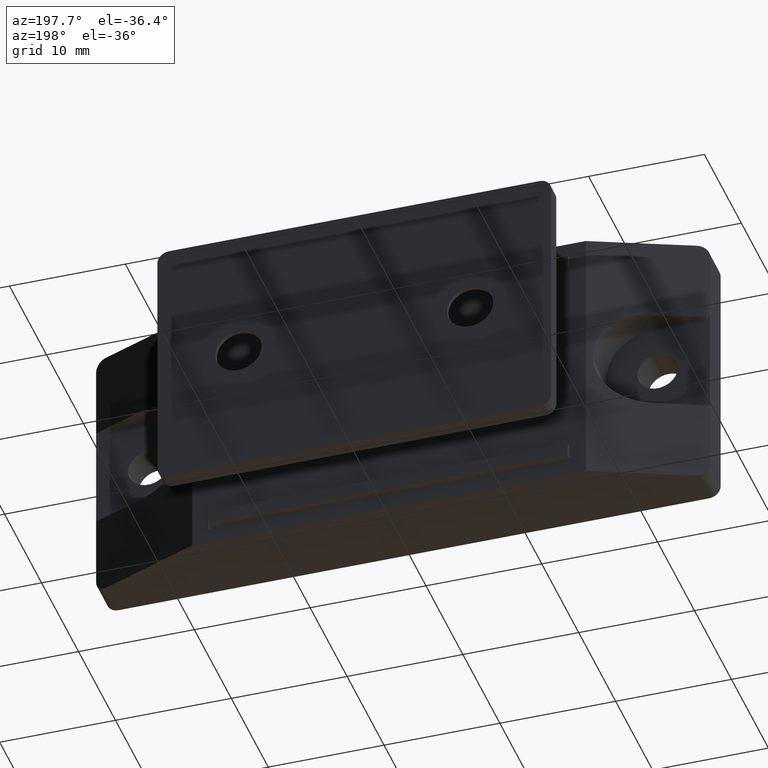
[diagram: clean part render]
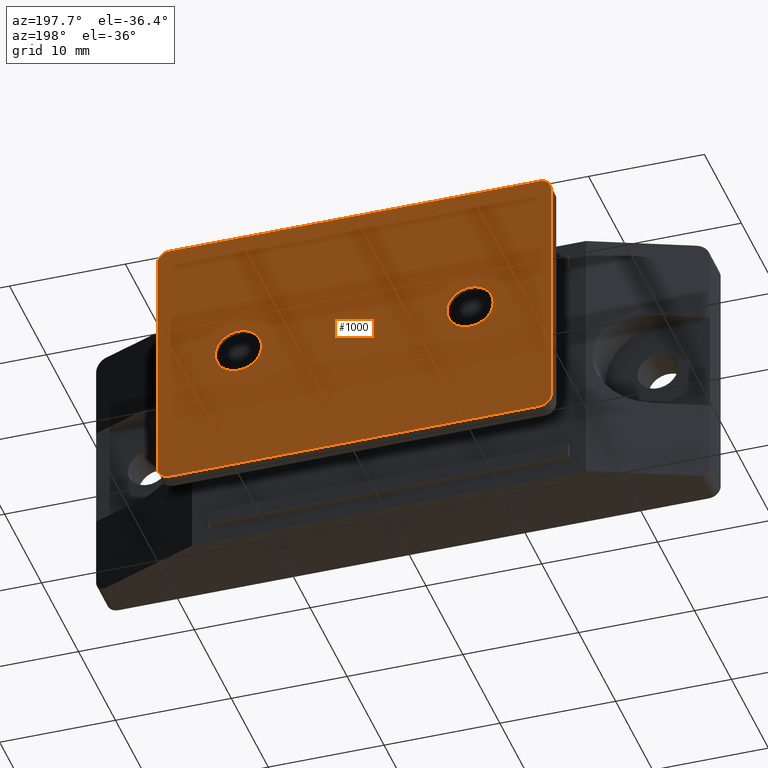
[diagram: same view with one face highlighted and labeled with its STEP entity id]
A machine part, auxiliary view. The second image highlights one B-rep face of the part: STEP entity #1000.
In plain terms, the highlighted planar face has unit normal (-0, -1, 0).
Its self-contained STEP definition (entity closure, byte-faithful):
#50=FACE_BOUND('',#201,.T.);
#51=FACE_BOUND('',#202,.T.);
#83=PLANE('',#1082);
#134=FACE_OUTER_BOUND('',#200,.T.);
#200=EDGE_LOOP('',(#852,#853,#854,#855,#856,#857,#858,#859));
#201=EDGE_LOOP('',(#860));
#202=EDGE_LOOP('',(#861));
#302=LINE('',#1590,#404);
#305=LINE('',#1596,#407);
#306=LINE('',#1600,#408);
#307=LINE('',#1604,#409);
#404=VECTOR('',#1295,32.);
#407=VECTOR('',#1300,21.);
#408=VECTOR('',#1303,32.);
#409=VECTOR('',#1306,21.);
#453=CIRCLE('',#1080,1.);
#454=CIRCLE('',#1083,1.);
#455=CIRCLE('',#1084,1.);
#456=CIRCLE('',#1085,1.);
#457=CIRCLE('',#1086,2.);
#458=CIRCLE('',#1087,2.);
#520=VERTEX_POINT('',#1583);
#521=VERTEX_POINT('',#1585);
#522=VERTEX_POINT('',#1589);
#524=VERTEX_POINT('',#1595);
#525=VERTEX_POINT('',#1597);
#526=VERTEX_POINT('',#1599);
#527=VERTEX_POINT('',#1601);
#528=VERTEX_POINT('',#1603);
#529=VERTEX_POINT('',#1606);
#530=VERTEX_POINT('',#1608);
#636=EDGE_CURVE('',#520,#521,#453,.T.);
#638=EDGE_CURVE('',#522,#521,#302,.T.);
#641=EDGE_CURVE('',#520,#524,#305,.T.);
#642=EDGE_CURVE('',#525,#524,#454,.T.);
#643=EDGE_CURVE('',#525,#526,#306,.T.);
#644=EDGE_CURVE('',#527,#526,#455,.T.);
#645=EDGE_CURVE('',#527,#528,#307,.T.);
#646=EDGE_CURVE('',#522,#528,#456,.T.);
#647=EDGE_CURVE('',#529,#529,#457,.T.);
#648=EDGE_CURVE('',#530,#530,#458,.T.);
#852=ORIENTED_EDGE('',*,*,#636,.F.);
#853=ORIENTED_EDGE('',*,*,#641,.T.);
#854=ORIENTED_EDGE('',*,*,#642,.F.);
#855=ORIENTED_EDGE('',*,*,#643,.T.);
#856=ORIENTED_EDGE('',*,*,#644,.F.);
#857=ORIENTED_EDGE('',*,*,#645,.T.);
#858=ORIENTED_EDGE('',*,*,#646,.F.);
#859=ORIENTED_EDGE('',*,*,#638,.T.);
#860=ORIENTED_EDGE('',*,*,#647,.T.);
#861=ORIENTED_EDGE('',*,*,#648,.T.);
#1000=ADVANCED_FACE('',(#134,#50,#51),#83,.F.);
#1080=AXIS2_PLACEMENT_3D('',#1586,#1290,#1291);
#1082=AXIS2_PLACEMENT_3D('',#1594,#1298,#1299);
#1083=AXIS2_PLACEMENT_3D('',#1598,#1301,#1302);
#1084=AXIS2_PLACEMENT_3D('',#1602,#1304,#1305);
#1085=AXIS2_PLACEMENT_3D('',#1605,#1307,#1308);
#1086=AXIS2_PLACEMENT_3D('',#1607,#1309,#1310);
#1087=AXIS2_PLACEMENT_3D('',#1609,#1311,#1312);
#1290=DIRECTION('center_axis',(0.,0.,1.));
#1291=DIRECTION('ref_axis',(0.707106781186548,0.707106781186548,0.));
#1295=DIRECTION('',(1.,0.,0.));
#1298=DIRECTION('center_axis',(0.,0.,1.));
#1299=DIRECTION('ref_axis',(-1.,0.,0.));
#1300=DIRECTION('',(0.,-1.,0.));
#1301=DIRECTION('center_axis',(0.,0.,1.));
#1302=DIRECTION('ref_axis',(0.707106781186548,-0.707106781186548,0.));
#1303=DIRECTION('',(-1.,0.,0.));
#1304=DIRECTION('center_axis',(0.,0.,1.));
#1305=DIRECTION('ref_axis',(-0.707106781186548,-0.707106781186548,0.));
#1306=DIRECTION('',(0.,1.,0.));
#1307=DIRECTION('center_axis',(0.,0.,1.));
#1308=DIRECTION('ref_axis',(-0.707106781186548,0.707106781186548,0.));
#1309=DIRECTION('center_axis',(0.,0.,1.));
#1310=DIRECTION('ref_axis',(1.,0.,0.));
#1311=DIRECTION('center_axis',(0.,0.,1.));
#1312=DIRECTION('ref_axis',(1.,0.,0.));
#1583=CARTESIAN_POINT('',(17.,10.5,0.6));
#1585=CARTESIAN_POINT('',(16.,11.5,0.6));
#1586=CARTESIAN_POINT('Origin',(16.,10.5,0.6));
#1589=CARTESIAN_POINT('',(-16.,11.5,0.6));
#1590=CARTESIAN_POINT('',(-17.,11.5,0.6));
#1594=CARTESIAN_POINT('Origin',(0.,0.,0.6));
#1595=CARTESIAN_POINT('',(17.,-10.5,0.6));
#1596=CARTESIAN_POINT('',(17.,11.5,0.6));
#1597=CARTESIAN_POINT('',(16.,-11.5,0.6));
#1598=CARTESIAN_POINT('Origin',(16.,-10.5,0.6));
#1599=CARTESIAN_POINT('',(-16.,-11.5,0.6));
#1600=CARTESIAN_POINT('',(17.,-11.5,0.6));
#1601=CARTESIAN_POINT('',(-17.,-10.5,0.6));
#1602=CARTESIAN_POINT('Origin',(-16.,-10.5,0.6));
#1603=CARTESIAN_POINT('',(-17.,10.5,0.6));
#1604=CARTESIAN_POINT('',(-17.,-11.5,0.6));
#1605=CARTESIAN_POINT('Origin',(-16.,10.5,0.6));
#1606=CARTESIAN_POINT('',(8.,-2.44929359829471E-16,0.6));
#1607=CARTESIAN_POINT('Origin',(10.,0.,0.6));
#1608=CARTESIAN_POINT('',(-12.,-2.44929359829471E-16,0.6));
#1609=CARTESIAN_POINT('Origin',(-10.,0.,0.6));